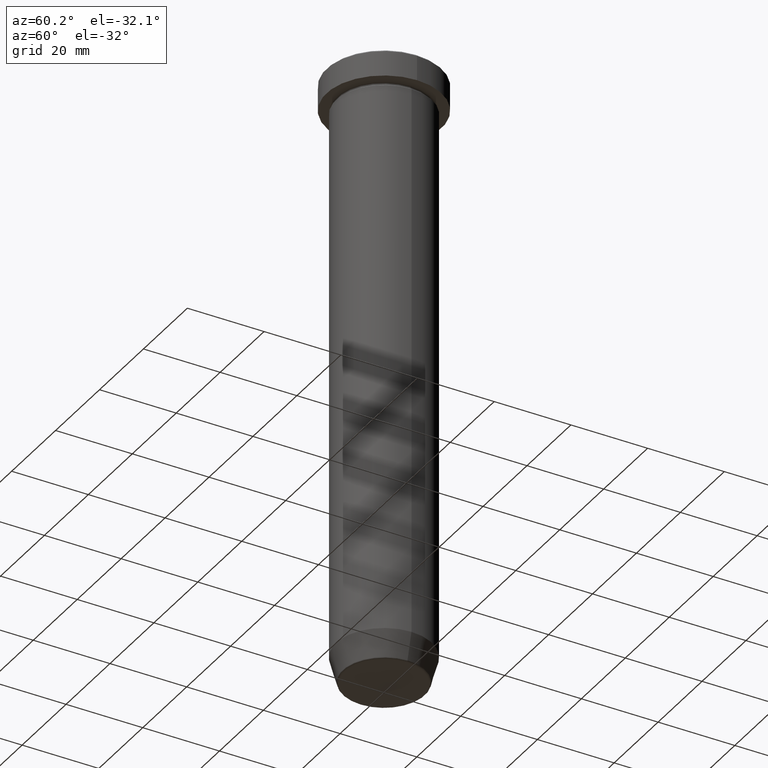
[diagram: clean part render]
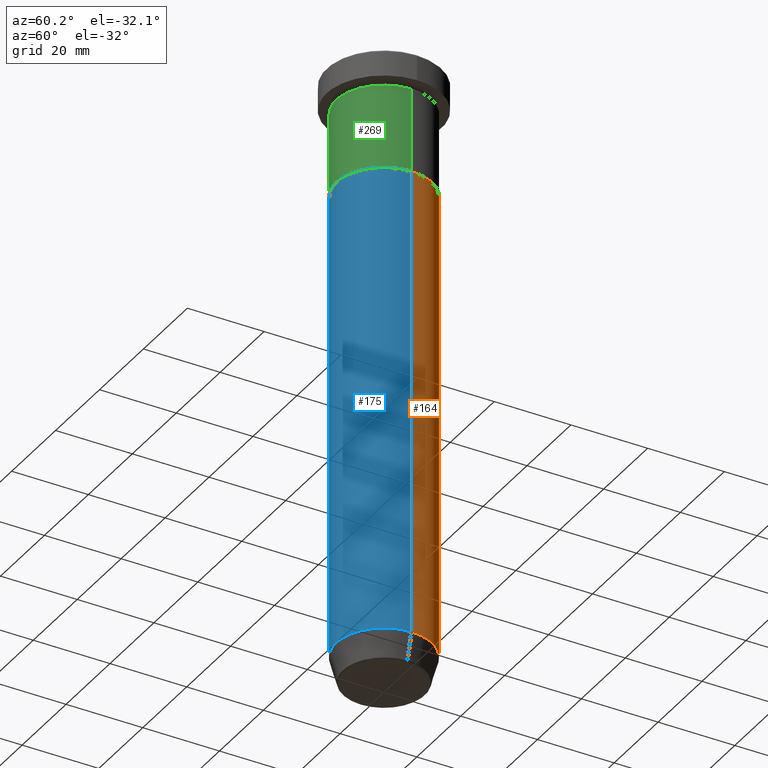
[diagram: same view with three faces highlighted in distinct colors, each labeled with its STEP entity id]
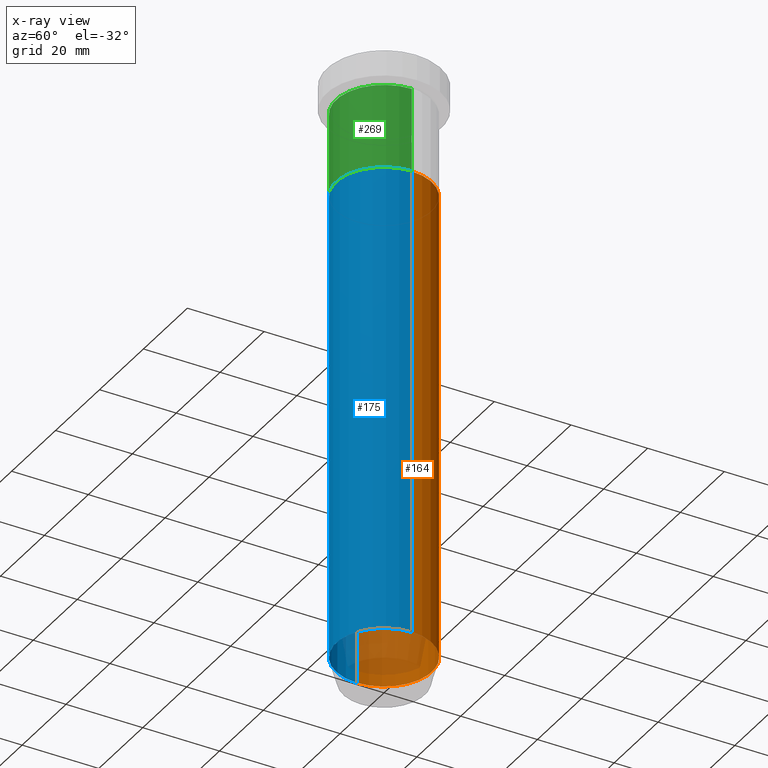
[diagram: x-ray of the same camera — body ghosted, the three highlighted faces saturated]
A machine part, auxiliary view with three faces highlighted in distinct colors.
The next image is the same camera in x-ray (body ghosted, the three faces saturated) — at least one of them is partly hidden behind the body in this view.
Their STEP definitions:

[orange] entity #164 — the highlighted cylindrical surface (partial cylindrical patch) has radius 12.5 mm, axis along (-0, -0, 1).
#26 = EDGE_CURVE ( 'NONE', #480, #92, #59, .T. ) ;
#29 = AXIS2_PLACEMENT_3D ( 'NONE', #417, #279, #325 ) ;
#30 = VECTOR ( 'NONE', #412, 1000.000000000000000 ) ;
#53 = VERTEX_POINT ( 'NONE', #126 ) ;
#59 = LINE ( 'NONE', #208, #299 ) ;
#67 = DIRECTION ( 'NONE',  ( 1.000000000000000000, 0.000000000000000000, 0.000000000000000000 ) ) ;
#70 = DIRECTION ( 'NONE',  ( -0.000000000000000000, -0.000000000000000000, 1.000000000000000000 ) ) ;
#81 = CARTESIAN_POINT ( 'NONE',  ( 0.000000000000000000, 0.000000000000000000, 0.000000000000000000 ) ) ;
#84 = CARTESIAN_POINT ( 'NONE',  ( 12.50000000000000000, 0.000000000000000000, 0.000000000000000000 ) ) ;
#92 = VERTEX_POINT ( 'NONE', #165 ) ;
#104 = VERTEX_POINT ( 'NONE', #497 ) ;
#114 = EDGE_CURVE ( 'NONE', #104, #92, #529, .T. ) ;
#126 = CARTESIAN_POINT ( 'NONE',  ( 12.50000000000000000, 0.000000000000000000, -153.0000000000000000 ) ) ;
#164 = ADVANCED_FACE ( 'NONE', ( #317 ), #356, .T. ) ;
#165 = CARTESIAN_POINT ( 'NONE',  ( -12.50000000000000000, 1.530808498934191521E-15, -30.00000000000000000 ) ) ;
#179 = LINE ( 'NONE', #84, #30 ) ;
#200 = ORIENTED_EDGE ( 'NONE', *, *, #218, .F. ) ;
#208 = CARTESIAN_POINT ( 'NONE',  ( -12.50000000000000000, 1.530808498934191521E-15, 0.000000000000000000 ) ) ;
#214 = CIRCLE ( 'NONE', #29, 12.50000000000000000 ) ;
#218 = EDGE_CURVE ( 'NONE', #53, #104, #179, .T. ) ;
#221 = AXIS2_PLACEMENT_3D ( 'NONE', #81, #540, #67 ) ;
#247 = CARTESIAN_POINT ( 'NONE',  ( -12.50000000000000000, 1.530808498934191521E-15, -153.0000000000000000 ) ) ;
#258 = CARTESIAN_POINT ( 'NONE',  ( 0.000000000000000000, 0.000000000000000000, -30.00000000000000000 ) ) ;
#279 = DIRECTION ( 'NONE',  ( -0.000000000000000000, -0.000000000000000000, 1.000000000000000000 ) ) ;
#289 = ORIENTED_EDGE ( 'NONE', *, *, #314, .T. ) ;
#293 = ORIENTED_EDGE ( 'NONE', *, *, #114, .F. ) ;
#299 = VECTOR ( 'NONE', #440, 1000.000000000000000 ) ;
#314 = EDGE_CURVE ( 'NONE', #53, #480, #214, .T. ) ;
#317 = FACE_OUTER_BOUND ( 'NONE', #343, .T. ) ;
#325 = DIRECTION ( 'NONE',  ( 1.000000000000000000, 0.000000000000000000, 0.000000000000000000 ) ) ;
#343 = EDGE_LOOP ( 'NONE', ( #289, #382, #293, #200 ) ) ;
#356 = CYLINDRICAL_SURFACE ( 'NONE', #221, 12.50000000000000000 ) ;
#382 = ORIENTED_EDGE ( 'NONE', *, *, #26, .T. ) ;
#412 = DIRECTION ( 'NONE',  ( -0.000000000000000000, -0.000000000000000000, 1.000000000000000000 ) ) ;
#417 = CARTESIAN_POINT ( 'NONE',  ( 0.000000000000000000, 0.000000000000000000, -153.0000000000000000 ) ) ;
#440 = DIRECTION ( 'NONE',  ( -0.000000000000000000, -0.000000000000000000, 1.000000000000000000 ) ) ;
#480 = VERTEX_POINT ( 'NONE', #247 ) ;
#497 = CARTESIAN_POINT ( 'NONE',  ( 12.50000000000000000, 0.000000000000000000, -30.00000000000000000 ) ) ;
#513 = AXIS2_PLACEMENT_3D ( 'NONE', #258, #70, #545 ) ;
#529 = CIRCLE ( 'NONE', #513, 12.50000000000000000 ) ;
#540 = DIRECTION ( 'NONE',  ( -0.000000000000000000, -0.000000000000000000, 1.000000000000000000 ) ) ;
#545 = DIRECTION ( 'NONE',  ( 1.000000000000000000, 0.000000000000000000, 0.000000000000000000 ) ) ;

[blue] entity #175 — the highlighted cylindrical surface (partial cylindrical patch) has radius 12.5 mm, axis along (-0, -0, 1).
#15 = DIRECTION ( 'NONE',  ( 1.000000000000000000, 0.000000000000000000, 0.000000000000000000 ) ) ;
#26 = EDGE_CURVE ( 'NONE', #480, #92, #59, .T. ) ;
#30 = VECTOR ( 'NONE', #412, 1000.000000000000000 ) ;
#53 = VERTEX_POINT ( 'NONE', #126 ) ;
#59 = LINE ( 'NONE', #208, #299 ) ;
#65 = ORIENTED_EDGE ( 'NONE', *, *, #26, .F. ) ;
#84 = CARTESIAN_POINT ( 'NONE',  ( 12.50000000000000000, 0.000000000000000000, 0.000000000000000000 ) ) ;
#92 = VERTEX_POINT ( 'NONE', #165 ) ;
#104 = VERTEX_POINT ( 'NONE', #497 ) ;
#124 = DIRECTION ( 'NONE',  ( 1.000000000000000000, 0.000000000000000000, 0.000000000000000000 ) ) ;
#126 = CARTESIAN_POINT ( 'NONE',  ( 12.50000000000000000, 0.000000000000000000, -153.0000000000000000 ) ) ;
#160 = CIRCLE ( 'NONE', #380, 12.50000000000000000 ) ;
#165 = CARTESIAN_POINT ( 'NONE',  ( -12.50000000000000000, 1.530808498934191521E-15, -30.00000000000000000 ) ) ;
#175 = ADVANCED_FACE ( 'NONE', ( #256 ), #445, .T. ) ;
#179 = LINE ( 'NONE', #84, #30 ) ;
#208 = CARTESIAN_POINT ( 'NONE',  ( -12.50000000000000000, 1.530808498934191521E-15, 0.000000000000000000 ) ) ;
#215 = DIRECTION ( 'NONE',  ( -0.000000000000000000, -0.000000000000000000, 1.000000000000000000 ) ) ;
#218 = EDGE_CURVE ( 'NONE', #53, #104, #179, .T. ) ;
#247 = CARTESIAN_POINT ( 'NONE',  ( -12.50000000000000000, 1.530808498934191521E-15, -153.0000000000000000 ) ) ;
#251 = ORIENTED_EDGE ( 'NONE', *, *, #218, .T. ) ;
#256 = FACE_OUTER_BOUND ( 'NONE', #437, .T. ) ;
#299 = VECTOR ( 'NONE', #440, 1000.000000000000000 ) ;
#309 = EDGE_CURVE ( 'NONE', #92, #104, #160, .T. ) ;
#340 = CARTESIAN_POINT ( 'NONE',  ( 0.000000000000000000, 0.000000000000000000, -153.0000000000000000 ) ) ;
#357 = AXIS2_PLACEMENT_3D ( 'NONE', #403, #215, #124 ) ;
#378 = CIRCLE ( 'NONE', #396, 12.50000000000000000 ) ;
#380 = AXIS2_PLACEMENT_3D ( 'NONE', #558, #470, #459 ) ;
#396 = AXIS2_PLACEMENT_3D ( 'NONE', #340, #479, #15 ) ;
#403 = CARTESIAN_POINT ( 'NONE',  ( 0.000000000000000000, 0.000000000000000000, 0.000000000000000000 ) ) ;
#412 = DIRECTION ( 'NONE',  ( -0.000000000000000000, -0.000000000000000000, 1.000000000000000000 ) ) ;
#437 = EDGE_LOOP ( 'NONE', ( #65, #478, #251, #563 ) ) ;
#440 = DIRECTION ( 'NONE',  ( -0.000000000000000000, -0.000000000000000000, 1.000000000000000000 ) ) ;
#445 = CYLINDRICAL_SURFACE ( 'NONE', #357, 12.50000000000000000 ) ;
#459 = DIRECTION ( 'NONE',  ( 1.000000000000000000, 0.000000000000000000, 0.000000000000000000 ) ) ;
#461 = EDGE_CURVE ( 'NONE', #480, #53, #378, .T. ) ;
#470 = DIRECTION ( 'NONE',  ( -0.000000000000000000, -0.000000000000000000, 1.000000000000000000 ) ) ;
#478 = ORIENTED_EDGE ( 'NONE', *, *, #461, .T. ) ;
#479 = DIRECTION ( 'NONE',  ( -0.000000000000000000, -0.000000000000000000, 1.000000000000000000 ) ) ;
#480 = VERTEX_POINT ( 'NONE', #247 ) ;
#497 = CARTESIAN_POINT ( 'NONE',  ( 12.50000000000000000, 0.000000000000000000, -30.00000000000000000 ) ) ;
#558 = CARTESIAN_POINT ( 'NONE',  ( 0.000000000000000000, 0.000000000000000000, -30.00000000000000000 ) ) ;
#563 = ORIENTED_EDGE ( 'NONE', *, *, #309, .F. ) ;

[green] entity #269 — the highlighted cylindrical surface (partial cylindrical patch) has radius 12.5 mm, axis along (-0, -0, 1).
#3 = DIRECTION ( 'NONE',  ( 1.000000000000000000, 0.000000000000000000, 0.000000000000000000 ) ) ;
#38 = VERTEX_POINT ( 'NONE', #301 ) ;
#42 = ORIENTED_EDGE ( 'NONE', *, *, #523, .T. ) ;
#48 = ORIENTED_EDGE ( 'NONE', *, *, #443, .T. ) ;
#130 = VECTOR ( 'NONE', #473, 1000.000000000000000 ) ;
#140 = VERTEX_POINT ( 'NONE', #174 ) ;
#146 = CYLINDRICAL_SURFACE ( 'NONE', #404, 12.50000000000000000 ) ;
#147 = EDGE_LOOP ( 'NONE', ( #557, #42, #48, #162 ) ) ;
#153 = CARTESIAN_POINT ( 'NONE',  ( -12.50000000000000000, 1.530808498934191521E-15, 0.000000000000000000 ) ) ;
#162 = ORIENTED_EDGE ( 'NONE', *, *, #241, .F. ) ;
#174 = CARTESIAN_POINT ( 'NONE',  ( 12.50000000000000000, 0.000000000000000000, -30.00000000000000000 ) ) ;
#193 = CARTESIAN_POINT ( 'NONE',  ( 0.000000000000000000, 0.000000000000000000, -8.000000000000000000 ) ) ;
#203 = CARTESIAN_POINT ( 'NONE',  ( 0.000000000000000000, 0.000000000000000000, -30.00000000000000000 ) ) ;
#229 = CARTESIAN_POINT ( 'NONE',  ( 0.000000000000000000, 0.000000000000000000, 0.000000000000000000 ) ) ;
#239 = LINE ( 'NONE', #153, #130 ) ;
#241 = EDGE_CURVE ( 'NONE', #475, #387, #346, .T. ) ;
#245 = DIRECTION ( 'NONE',  ( -0.000000000000000000, -0.000000000000000000, 1.000000000000000000 ) ) ;
#269 = ADVANCED_FACE ( 'NONE', ( #593 ), #146, .T. ) ;
#284 = CARTESIAN_POINT ( 'NONE',  ( -12.50000000000000000, 1.530808498934191521E-15, -8.000000000000000000 ) ) ;
#298 = CARTESIAN_POINT ( 'NONE',  ( 12.50000000000000000, 0.000000000000000000, 0.000000000000000000 ) ) ;
#300 = AXIS2_PLACEMENT_3D ( 'NONE', #193, #517, #3 ) ;
#301 = CARTESIAN_POINT ( 'NONE',  ( -12.50000000000000000, 1.530808498934191521E-15, -30.00000000000000000 ) ) ;
#338 = DIRECTION ( 'NONE',  ( -0.000000000000000000, -0.000000000000000000, 1.000000000000000000 ) ) ;
#346 = CIRCLE ( 'NONE', #300, 12.50000000000000000 ) ;
#365 = CIRCLE ( 'NONE', #502, 12.50000000000000000 ) ;
#387 = VERTEX_POINT ( 'NONE', #565 ) ;
#392 = EDGE_CURVE ( 'NONE', #38, #475, #239, .T. ) ;
#404 = AXIS2_PLACEMENT_3D ( 'NONE', #229, #514, #409 ) ;
#409 = DIRECTION ( 'NONE',  ( 1.000000000000000000, 0.000000000000000000, 0.000000000000000000 ) ) ;
#411 = VECTOR ( 'NONE', #245, 1000.000000000000000 ) ;
#436 = LINE ( 'NONE', #298, #411 ) ;
#443 = EDGE_CURVE ( 'NONE', #140, #387, #436, .T. ) ;
#473 = DIRECTION ( 'NONE',  ( -0.000000000000000000, -0.000000000000000000, 1.000000000000000000 ) ) ;
#475 = VERTEX_POINT ( 'NONE', #284 ) ;
#477 = DIRECTION ( 'NONE',  ( 1.000000000000000000, 0.000000000000000000, 0.000000000000000000 ) ) ;
#502 = AXIS2_PLACEMENT_3D ( 'NONE', #203, #338, #477 ) ;
#514 = DIRECTION ( 'NONE',  ( -0.000000000000000000, -0.000000000000000000, 1.000000000000000000 ) ) ;
#517 = DIRECTION ( 'NONE',  ( -0.000000000000000000, -0.000000000000000000, 1.000000000000000000 ) ) ;
#523 = EDGE_CURVE ( 'NONE', #38, #140, #365, .T. ) ;
#557 = ORIENTED_EDGE ( 'NONE', *, *, #392, .F. ) ;
#565 = CARTESIAN_POINT ( 'NONE',  ( 12.50000000000000000, 0.000000000000000000, -8.000000000000000000 ) ) ;
#593 = FACE_OUTER_BOUND ( 'NONE', #147, .T. ) ;